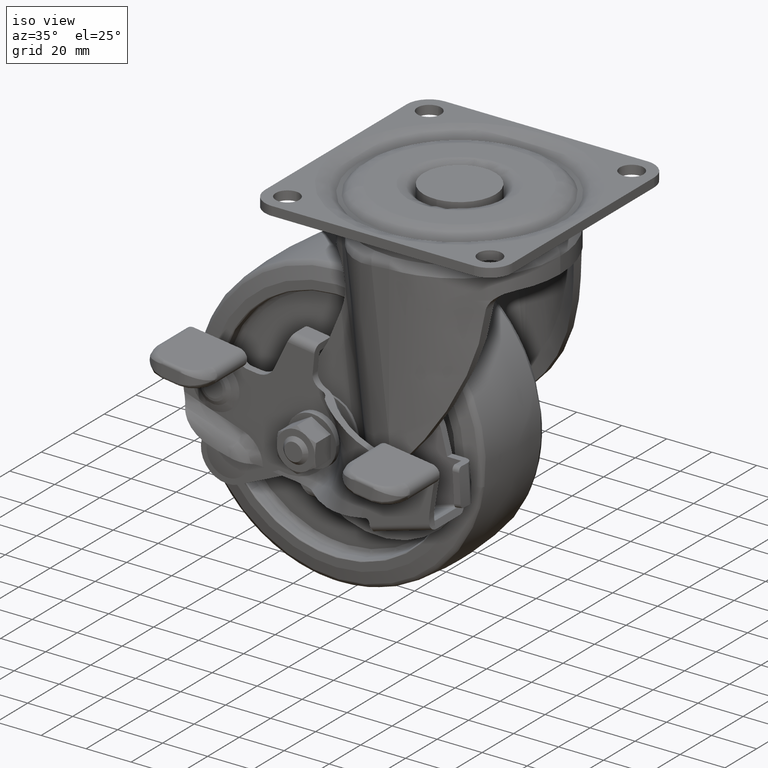
[diagram: clean part render]
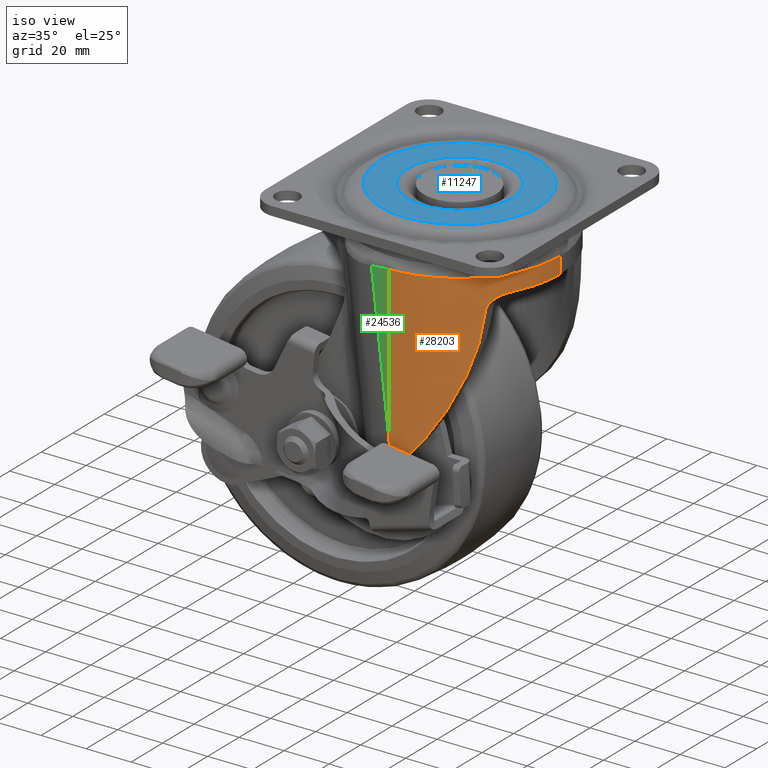
[diagram: same view with three faces highlighted in distinct colors, each labeled with its STEP entity id]
A machine part, iso view with three faces highlighted in distinct colors.
Their STEP definitions:

[orange] entity #28203 — the highlighted face is a freeform B-spline surface patch.
#23307=CARTESIAN_POINT('',(0.0,-44.866289000000002,-17.248842761986001));
#23308=VERTEX_POINT('',#23307);
#24521=CARTESIAN_POINT('',(-1.387779E-014,-44.866289000000002,-85.466906948423002));
#24522=VERTEX_POINT('',#24521);
#24523=CARTESIAN_POINT('',(-1.387779E-014,-44.866289000000002,-85.466906948423002));
#24524=CARTESIAN_POINT('',(0.0,-44.866289000000002,-17.248842761986001));
#24525=QUASI_UNIFORM_CURVE('',1,(#24523,#24524),.UNSPECIFIED.,.F.,.U.);
#24526=EDGE_CURVE('',#24522,#23308,#24525,.T.);
#24795=CARTESIAN_POINT('',(32.840996432676263,-30.514174671686899,-30.927961300702901));
#24796=VERTEX_POINT('',#24795);
#24797=CARTESIAN_POINT('',(0.983958270327116,-44.855470106970003,-97.711542046221595));
#24798=VERTEX_POINT('',#24797);
#24799=CARTESIAN_POINT('',(32.840996432676263,-30.514174671686899,-30.927961300702901));
#24800=CARTESIAN_POINT('',(32.731630099860837,-30.632330894282081,-32.546094941064631));
#24801=CARTESIAN_POINT('',(32.583944755285472,-30.790717479955401,-34.148724662803332));
#24802=CARTESIAN_POINT('',(32.215005379383093,-31.177960667727639,-37.325495495106431));
#24803=CARTESIAN_POINT('',(31.993748986579259,-31.406789397317429,-38.899641378470413));
#24804=CARTESIAN_POINT('',(31.479743140969362,-31.923853526529800,-42.021961037635847));
#24805=CARTESIAN_POINT('',(31.186991467957242,-32.212068984576547,-43.570138118607503));
#24806=CARTESIAN_POINT('',(30.531151511851469,-32.836562791659382,-46.642899830400637));
#24807=CARTESIAN_POINT('',(30.168061559413310,-33.172829663806667,-48.167486282591760));
#24808=CARTESIAN_POINT('',(29.371842230880731,-33.882273405533120,-51.195232966326117));
#24809=CARTESIAN_POINT('',(28.938712087202831,-34.255446139718060,-52.698393819863433));
#24810=CARTESIAN_POINT('',(28.236094140373918,-34.834837926547017,-54.938503494586953));
#24811=CARTESIAN_POINT('',(27.993061357243821,-35.031244232121779,-55.682766129840083));
#24812=CARTESIAN_POINT('',(27.489200453036879,-35.429309848749867,-57.166626006647171));
#24813=CARTESIAN_POINT('',(27.228122795627090,-35.631150784907263,-57.906866906281500));
#24814=CARTESIAN_POINT('',(26.421143775048328,-36.240241938700727,-60.112275977825377));
#24815=CARTESIAN_POINT('',(25.850857053407641,-36.651589258078467,-61.564310592639139));
#24816=CARTESIAN_POINT('',(24.645915459018759,-37.475007213163657,-64.434776762133907));
#24817=CARTESIAN_POINT('',(24.011259198952249,-37.887089062461428,-65.853204463774858));
#24818=CARTESIAN_POINT('',(22.677053516709631,-38.702881872110282,-68.658725358907759));
#24819=CARTESIAN_POINT('',(21.977504427053599,-39.106604614757117,-70.045815432892368));
#24820=CARTESIAN_POINT('',(20.512251665161958,-39.896974567302557,-72.790438651954332));
#24821=CARTESIAN_POINT('',(19.746550068240872,-40.283634522892449,-74.147969312690009));
#24822=CARTESIAN_POINT('',(18.146958658199338,-41.031197986952129,-76.834843949005005));
#24823=CARTESIAN_POINT('',(17.313072941648080,-41.392116170936283,-78.164185949876256));
#24824=CARTESIAN_POINT('',(16.008930425524440,-41.907378031786152,-80.137830900945744));
#24825=CARTESIAN_POINT('',(15.565323467464230,-42.074775066961450,-80.792315392128756));
#24826=CARTESIAN_POINT('',(14.886231415557461,-42.318426992784453,-81.769022469503781));
#24827=CARTESIAN_POINT('',(14.657485590724010,-42.398437439893463,-82.093896067101610));
#24828=CARTESIAN_POINT('',(14.195833179177390,-42.555660824809500,-82.741330960112165));
#24829=CARTESIAN_POINT('',(13.963123596707600,-42.632808526186679,-83.063619772614160));
#24830=CARTESIAN_POINT('',(12.790142660555251,-43.010890080827330,-84.667958762606901));
#24831=CARTESIAN_POINT('',(11.821594995001030,-43.288879795848210,-85.928709586177362));
#24832=CARTESIAN_POINT('',(9.823401096722959,-43.786914083052018,-88.405486636485804));
#24833=CARTESIAN_POINT('',(8.793756992630948,-44.006976581236110,-89.621511953282095));
#24834=CARTESIAN_POINT('',(6.671987161986849,-44.379221637924047,-92.009163520049910));
#24835=CARTESIAN_POINT('',(5.579865153196719,-44.531427703655588,-93.180789391207938));
#24836=CARTESIAN_POINT('',(3.331058320823689,-44.756444596235283,-95.479599050963813));
#24837=CARTESIAN_POINT('',(2.174379509276349,-44.829288920943434,-96.606782927658045));
#24838=CARTESIAN_POINT('',(0.983958270327203,-44.855470106969982,-97.711542046221666));
#24839=B_SPLINE_CURVE_WITH_KNOTS('',3,(#24799,#24800,#24801,#24802,#24803,#24804,#24805,#24806,#24807,#24808,#24809,#24810,#24811,#24812,#24813,#24814,#24815,#24816,#24817,#24818,#24819,#24820,#24821,#24822,#24823,#24824,#24825,#24826,#24827,#24828,#24829,#24830,#24831,#24832,#24833,#24834,#24835,#24836,#24837,#24838),.UNSPECIFIED.,.F.,.U.,(4,2,2,2,2,2,2,2,2,2,2,2,2,2,2,2,2,2,2,4),(0.0,0.062500000000000,0.124999999999999,0.187499999999999,0.249999999999998,0.312499999999998,0.343749999999998,0.374999999999997,0.437499999999997,0.499999999999997,0.562499999999997,0.624999999999997,0.687499999999997,0.718749999999997,0.734374999999997,0.749999999999997,0.812499999999998,0.874999999999998,0.937499999999999,1.0),.UNSPECIFIED.);
#24840=EDGE_CURVE('',#24796,#24798,#24839,.T.);
#24982=CARTESIAN_POINT('',(-1.387779E-014,-44.866289000000002,-85.466906948423002));
#24983=CARTESIAN_POINT('',(0.327975649001755,-44.866289000000037,-89.548454813020257));
#24984=CARTESIAN_POINT('',(0.655951281513829,-44.862684034033087,-93.630002685321458));
#24985=CARTESIAN_POINT('',(0.983958270327116,-44.855470106970003,-97.711542046221595));
#24986=QUASI_UNIFORM_CURVE('',3,(#24982,#24983,#24984,#24985),.UNSPECIFIED.,.F.,.U.);
#24987=EDGE_CURVE('',#24522,#24798,#24986,.T.);
#26011=CARTESIAN_POINT('',(44.750000000000000,-0.116289000000047,-17.135443677866451));
#26012=VERTEX_POINT('',#26011);
#26235=CARTESIAN_POINT('',(44.750000000000000,-0.116289000000047,-17.135443677866451));
#26236=CARTESIAN_POINT('',(44.750000000000000,-1.592059059004997,-17.139291673083729));
#26237=CARTESIAN_POINT('',(44.677175983599923,-3.063789167771555,-17.143118111069111));
#26238=CARTESIAN_POINT('',(44.495278035833017,-4.898410857314078,-17.147874577108560));
#26239=CARTESIAN_POINT('',(44.454308220495712,-5.265321345076796,-17.148825156901271));
#26240=CARTESIAN_POINT('',(44.363569910977041,-5.996060951983595,-17.150716998275009));
#26241=CARTESIAN_POINT('',(44.313780485432602,-6.360161973733542,-17.151658965685190));
#26242=CARTESIAN_POINT('',(44.151292432909969,-7.448699176509034,-17.154473158397629));
#26243=CARTESIAN_POINT('',(44.025482220071211,-8.169371845904813,-17.156333680533130));
#26244=CARTESIAN_POINT('',(43.596418382447467,-10.316569209574920,-17.161869391059099));
#26245=CARTESIAN_POINT('',(43.241652660935472,-11.728308020249600,-17.165498815662279));
#26246=CARTESIAN_POINT('',(42.396017706130401,-14.512718878171301,-17.172638366252119));
#26247=CARTESIAN_POINT('',(41.905151432675872,-15.885391775009770,-17.176148491774260));
#26248=CARTESIAN_POINT('',(41.064833776819960,-17.914544015962260,-17.181324084087318));
#26249=CARTESIAN_POINT('',(40.767360712763271,-18.585943070184889,-17.183034325932731));
#26250=CARTESIAN_POINT('',(40.373361304938001,-19.418831695218689,-17.185153239837099));
#26251=CARTESIAN_POINT('',(40.293406915396247,-19.585182665091320,-17.185576310074421));
#26252=CARTESIAN_POINT('',(40.131692247241439,-19.916383413033412,-17.186418365958019));
#26253=CARTESIAN_POINT('',(39.886297226102172,-20.411182373984921,-17.187675958387739));
#26254=CARTESIAN_POINT('',(39.632484095583060,-20.900010985219009,-17.188917198634840));
#26255=CARTESIAN_POINT('',(38.767924605820603,-22.516307841190919,-17.193018802615871));
#26256=CARTESIAN_POINT('',(38.017162786643190,-23.767419924240070,-17.196185580405601));
#26257=CARTESIAN_POINT('',(36.400053335120560,-26.187667512500099,-17.202297992434531));
#26258=CARTESIAN_POINT('',(35.533701123842292,-27.356799770219460,-17.205243613389211));
#26259=CARTESIAN_POINT('',(33.684690276566371,-29.612576623238070,-17.210915274789851));
#26260=CARTESIAN_POINT('',(32.702043374820157,-30.699229540799472,-17.213641332001430));
#26261=CARTESIAN_POINT('',(31.137732845414089,-32.265137214209751,-17.217562204147349));
#26262=CARTESIAN_POINT('',(30.605210682919409,-32.772391216103919,-17.218831018531869));
#26263=CARTESIAN_POINT('',(29.519125101772421,-33.757352986152718,-17.221292505711919));
#26264=CARTESIAN_POINT('',(28.965444984177431,-34.235176637921569,-17.222485468440880));
#26265=CARTESIAN_POINT('',(27.272886953928349,-35.625219205236263,-17.225952973957121));
#26266=CARTESIAN_POINT('',(26.102565626307712,-36.494112059498100,-17.228116401337260));
#26267=CARTESIAN_POINT('',(23.678292459660881,-38.116662801038053,-17.232150570234751));
#26268=CARTESIAN_POINT('',(22.424345174738260,-38.870326963452897,-17.234021323251650));
#26269=CARTESIAN_POINT('',(20.965392596221228,-39.651698813805027,-17.235958516646509));
#26270=CARTESIAN_POINT('',(20.802614801195300,-39.737592020342163,-17.236171429464331));
#26271=CARTESIAN_POINT('',(20.475708160993332,-39.907516813458017,-17.236592573439790));
#26272=CARTESIAN_POINT('',(20.311475018928022,-39.991600615930587,-17.236800933959351));
#26273=CARTESIAN_POINT('',(19.817578467509239,-40.240621509495213,-17.237417914345670));
#26274=CARTESIAN_POINT('',(19.486894364893001,-40.402247713953329,-17.237818234210721));
#26275=CARTESIAN_POINT('',(18.490627604736002,-40.874101462721377,-17.238986595111939));
#26276=CARTESIAN_POINT('',(17.820833129751041,-41.171312285532103,-17.239722058842329));
#26277=CARTESIAN_POINT('',(15.794859123007351,-42.011671167255592,-17.241800536734821));
#26278=CARTESIAN_POINT('',(14.422128057430641,-42.503666318106042,-17.243015952454201));
#26279=CARTESIAN_POINT('',(11.632907358840670,-43.352419724118327,-17.245111285760359));
#26280=CARTESIAN_POINT('',(10.216418821395120,-43.709181365164540,-17.245991209211549));
#26281=CARTESIAN_POINT('',(8.417919186369330,-44.068941908728902,-17.246878160682918));
#26282=CARTESIAN_POINT('',(8.056821615389339,-44.136574565318220,-17.247044877778318));
#26283=CARTESIAN_POINT('',(7.331804512106659,-44.263118539510749,-17.247356778780620));
#26284=CARTESIAN_POINT('',(6.967531753550324,-44.322080148039120,-17.247502086608570));
#26285=CARTESIAN_POINT('',(5.873417339095804,-44.485302374245130,-17.247904301299450));
#26286=CARTESIAN_POINT('',(5.142589002022014,-44.575907859220329,-17.248127519139949));
#26287=CARTESIAN_POINT('',(2.945876515295306,-44.793464767499572,-17.248663442524389));
#26288=CARTESIAN_POINT('',(1.475775202262842,-44.866289000000052,-17.248842761986008));
#26289=CARTESIAN_POINT('',(-7.139596E-015,-44.866289000000037,-17.248842761986001));
#26290=B_SPLINE_CURVE_WITH_KNOTS('',3,(#26235,#26236,#26237,#26238,#26239,#26240,#26241,#26242,#26243,#26244,#26245,#26246,#26247,#26248,#26249,#26250,#26251,#26252,#26253,#26254,#26255,#26256,#26257,#26258,#26259,#26260,#26261,#26262,#26263,#26264,#26265,#26266,#26267,#26268,#26269,#26270,#26271,#26272,#26273,#26274,#26275,#26276,#26277,#26278,#26279,#26280,#26281,#26282,#26283,#26284,#26285,#26286,#26287,#26288,#26289),.UNSPECIFIED.,.F.,.U.,(4,2,2,2,2,2,2,2,2,1,2,2,2,2,2,2,2,2,2,2,2,2,2,2,2,2,2,4),(0.0,0.062500000000000,0.078125000000000,0.093750000000000,0.124999999999999,0.187499999999999,0.249999999999999,0.281249999999998,0.289062499999998,0.296874999999998,0.312499999999998,0.374999999999999,0.437499999999999,0.499999999999999,0.531249999999999,0.562500000000000,0.625000000000000,0.687500000000001,0.695312500000001,0.703125000000001,0.718750000000001,0.750000000000001,0.812500000000001,0.875000000000000,0.890625000000000,0.906250000000000,0.937500000000000,1.0),.UNSPECIFIED.);
#26291=EDGE_CURVE('',#26012,#23308,#26290,.T.);
#28118=CARTESIAN_POINT('',(-1.786212567958295,-44.830626126497471,-15.121041218657570));
#28119=CARTESIAN_POINT('',(-1.786212567958295,-44.830626126497471,-99.776304566910696));
#28120=CARTESIAN_POINT('',(47.010923657865710,-46.779935086627127,-15.121041218657568));
#28121=CARTESIAN_POINT('',(47.010923657865710,-46.779935086627127,-99.776304566910710));
#28122=CARTESIAN_POINT('',(44.699864257169239,2.001406773864164,-15.121041218657570));
#28123=CARTESIAN_POINT('',(44.699864257169239,2.001406773864164,-99.776304566910696));
#28131=(BOUNDED_SURFACE()B_SPLINE_SURFACE(1,2,((#28118,#28120,#28122),(#28119,#28121,#28123)),.UNSPECIFIED.,.F.,.F.,.U.)B_SPLINE_SURFACE_WITH_KNOTS((2,2),(3,3),(0.0,84.655263348253129),(0.0,78.761885029638194),.UNSPECIFIED.)GEOMETRIC_REPRESENTATION_ITEM()RATIONAL_B_SPLINE_SURFACE(((1.0,0.675590207615660,1.0),(1.0,0.675590207615660,1.0)))REPRESENTATION_ITEM('')SURFACE());
#28132=ORIENTED_EDGE('',*,*,#24526,.F.);
#28133=ORIENTED_EDGE('',*,*,#24987,.T.);
#28134=ORIENTED_EDGE('',*,*,#24840,.F.);
#28135=CARTESIAN_POINT('',(39.825062545362051,-20.525279500708351,-24.399999999999999));
#28136=VERTEX_POINT('',#28135);
#28137=CARTESIAN_POINT('',(39.825062545362051,-20.525279500708351,-24.399999999999999));
#28138=CARTESIAN_POINT('',(39.537730133407933,-21.085965306161849,-24.400000000000009));
#28139=CARTESIAN_POINT('',(39.240234213416308,-21.637305956422392,-24.417610941158660));
#28140=CARTESIAN_POINT('',(38.626307264561632,-22.720681030445348,-24.496467069418241));
#28141=CARTESIAN_POINT('',(38.309869136805560,-23.252721396718169,-24.557653358003289));
#28142=CARTESIAN_POINT('',(37.659721724315347,-24.296568919269060,-24.734805496965190));
#28143=CARTESIAN_POINT('',(37.325997423372833,-24.808389118482790,-24.850644060356789));
#28144=CARTESIAN_POINT('',(36.814146172117283,-25.559814494626110,-25.077877728140091));
#28145=CARTESIAN_POINT('',(36.641657350177013,-25.807566642417640,-25.162586418560942));
#28146=CARTESIAN_POINT('',(36.380412093603880,-26.174890093812650,-25.305393165193902));
#28147=CARTESIAN_POINT('',(36.292912399611943,-26.296613105247971,-25.355625796572081));
#28148=CARTESIAN_POINT('',(36.117137452534891,-26.538575860460011,-25.461832296981690));
#28149=CARTESIAN_POINT('',(36.028975409459633,-26.658653972481542,-25.517750927855250));
#28150=CARTESIAN_POINT('',(35.765643491895730,-27.013650862495989,-25.693368444625062));
#28151=CARTESIAN_POINT('',(35.590960383272090,-27.244249510025160,-25.821288788396060));
#28152=CARTESIAN_POINT('',(35.244764855751377,-27.692533354515032,-26.101838717438159));
#28153=CARTESIAN_POINT('',(35.073245246336022,-27.910225485487221,-26.254448241287669));
#28154=CARTESIAN_POINT('',(34.819730795440023,-28.226199738035429,-26.505025872443220));
#28155=CARTESIAN_POINT('',(34.735703413265057,-28.329945102363709,-26.592360808039441));
#28156=CARTESIAN_POINT('',(34.570794216555903,-28.531771918882519,-26.773161413617409));
#28157=CARTESIAN_POINT('',(34.489749968148047,-28.630059339937759,-26.866771097055079));
#28158=CARTESIAN_POINT('',(34.251338735734102,-28.916811604048711,-27.157771667357050));
#28159=CARTESIAN_POINT('',(34.098658162345650,-29.097203601542589,-27.365277909762089));
#28160=CARTESIAN_POINT('',(33.881492124376287,-29.350162183850120,-27.699777976039289));
#28161=CARTESIAN_POINT('',(33.811086906331603,-29.431535342882452,-27.815163724187119));
#28162=CARTESIAN_POINT('',(33.708857676593162,-29.548891766694521,-27.994595981229700));
#28163=CARTESIAN_POINT('',(33.675345171977710,-29.587225841147379,-28.055466957607681));
#28164=CARTESIAN_POINT('',(33.609526633417481,-29.662265210380021,-28.179435085037639));
#28165=CARTESIAN_POINT('',(33.577153796995432,-29.699045949329729,-28.242672173926930));
#28166=CARTESIAN_POINT('',(33.419627588912860,-29.877459089589639,-28.562443536055600));
#28167=CARTESIAN_POINT('',(33.307118414612020,-30.003064417118200,-28.830072508387019));
#28168=CARTESIAN_POINT('',(33.161485629520882,-30.164310837096771,-29.250866817156162));
#28169=CARTESIAN_POINT('',(33.116808420412362,-30.213516627470341,-29.394367533509691));
#28170=CARTESIAN_POINT('',(33.056097377437268,-30.280138702531371,-29.614805527594498));
#28171=CARTESIAN_POINT('',(33.036912387408357,-30.301146753680520,-29.689150412374062));
#28172=CARTESIAN_POINT('',(33.000747855608800,-30.340680783355250,-29.839641741898738));
#28173=CARTESIAN_POINT('',(32.983787856013393,-30.359185290000919,-29.915737858891500));
#28174=CARTESIAN_POINT('',(32.905414330264847,-30.444572913953401,-30.297437422316829));
#28175=CARTESIAN_POINT('',(32.862536404383917,-30.490903509289211,-30.609265849046430));
#28176=CARTESIAN_POINT('',(32.840996432676263,-30.514174671686899,-30.927961300702961));
#28177=B_SPLINE_CURVE_WITH_KNOTS('',3,(#28137,#28138,#28139,#28140,#28141,#28142,#28143,#28144,#28145,#28146,#28147,#28148,#28149,#28150,#28151,#28152,#28153,#28154,#28155,#28156,#28157,#28158,#28159,#28160,#28161,#28162,#28163,#28164,#28165,#28166,#28167,#28168,#28169,#28170,#28171,#28172,#28173,#28174,#28175,#28176),.UNSPECIFIED.,.F.,.U.,(4,2,2,2,2,2,2,2,2,2,2,2,2,2,2,2,2,2,2,4),(0.0,0.125000000000000,0.250000000000001,0.375000000000001,0.437500000000001,0.468750000000001,0.500000000000001,0.562500000000001,0.625000000000001,0.656250000000001,0.687500000000001,0.750000000000000,0.781250000000000,0.796875000000000,0.812500000000000,0.875000000000000,0.906250000000000,0.921875000000000,0.937500000000000,1.0),.UNSPECIFIED.);
#28178=EDGE_CURVE('',#28136,#24796,#28177,.T.);
#28179=ORIENTED_EDGE('',*,*,#28178,.F.);
#28180=CARTESIAN_POINT('',(44.750000000000000,-0.116289000000047,-24.399999999999999));
#28181=VERTEX_POINT('',#28180);
#28182=CARTESIAN_POINT('',(44.750000000000000,-0.116289000000047,-24.399999999999999));
#28183=CARTESIAN_POINT('',(44.750000000000007,-10.915007882612089,-24.399999999999999));
#28184=CARTESIAN_POINT('',(39.825062545362051,-20.525279500708329,-24.399999999999999));
#28192=(BOUNDED_CURVE()B_SPLINE_CURVE(2,(#28182,#28183,#28184),.UNSPECIFIED.,.F.,.U.)CURVE()GEOMETRIC_REPRESENTATION_ITEM()QUASI_UNIFORM_CURVE()RATIONAL_B_SPLINE_CURVE((1.0,0.972097096935264,1.0))REPRESENTATION_ITEM(''));
#28193=EDGE_CURVE('',#28181,#28136,#28192,.T.);
#28194=ORIENTED_EDGE('',*,*,#28193,.F.);
#28195=CARTESIAN_POINT('',(44.750000000000000,-0.116289000000047,-17.135443677866451));
#28196=CARTESIAN_POINT('',(44.750000000000000,-0.116289000000047,-24.399999999999999));
#28197=QUASI_UNIFORM_CURVE('',1,(#28195,#28196),.UNSPECIFIED.,.F.,.U.);
#28198=EDGE_CURVE('',#26012,#28181,#28197,.T.);
#28199=ORIENTED_EDGE('',*,*,#28198,.F.);
#28200=ORIENTED_EDGE('',*,*,#26291,.T.);
#28201=EDGE_LOOP('',(#28132,#28133,#28134,#28179,#28194,#28199,#28200));
#28202=FACE_OUTER_BOUND('',#28201,.T.);
#28203=ADVANCED_FACE('',(#28202),#28131,.T.);

[blue] entity #11247 — the highlighted face is a freeform B-spline surface patch.
#10902=CARTESIAN_POINT('',(-22.998184016583391,-0.289018917486756,-1.508212E-015));
#10903=VERTEX_POINT('',#10902);
#10917=CARTESIAN_POINT('',(23.0,0.0,0.0));
#10918=VERTEX_POINT('',#10917);
#10919=CARTESIAN_POINT('',(23.0,0.0,0.0));
#10920=CARTESIAN_POINT('',(23.000117290351820,-1.311915802925779,-2.664234E-019));
#10921=CARTESIAN_POINT('',(22.778879877665862,-3.888805590312656,-8.051052E-018));
#10922=CARTESIAN_POINT('',(21.705749411843151,-8.030312738230990,-4.408922E-017));
#10923=CARTESIAN_POINT('',(19.956522838299328,-11.687312727839830,-1.021949E-016));
#10924=CARTESIAN_POINT('',(17.505695135538460,-15.073928657519531,-1.832484E-016));
#10925=CARTESIAN_POINT('',(14.702776154658570,-17.860374273383538,-2.757224E-016));
#10926=CARTESIAN_POINT('',(11.392050451813530,-20.106077662008961,-3.847346E-016));
#10927=CARTESIAN_POINT('',(8.186244534034946,-21.568283121718270,-4.901453E-016));
#10928=CARTESIAN_POINT('',(5.265528420346707,-22.451054367420671,-5.860893E-016));
#10929=CARTESIAN_POINT('',(2.395749949713751,-22.938452661196312,-6.802818E-016));
#10930=CARTESIAN_POINT('',(-0.935044414612375,-23.071455134277571,-7.895167E-016));
#10931=CARTESIAN_POINT('',(-5.001360298495119,-22.610779773385410,-9.227450E-016));
#10932=CARTESIAN_POINT('',(-8.902454871288262,-21.341488950560191,-1.050390E-015));
#10933=CARTESIAN_POINT('',(-12.006299498253140,-19.678364233645389,-1.151813E-015));
#10934=CARTESIAN_POINT('',(-14.432599483971380,-17.990227377011418,-1.231017E-015));
#10935=CARTESIAN_POINT('',(-16.486963852110581,-16.128479924823029,-1.297991E-015));
#10936=CARTESIAN_POINT('',(-18.435574169814021,-13.843899118121280,-1.361410E-015));
#10937=CARTESIAN_POINT('',(-20.100311840480739,-11.341634929037451,-1.415476E-015));
#10938=CARTESIAN_POINT('',(-21.592225040003001,-8.200606403413266,-1.463745E-015));
#10939=CARTESIAN_POINT('',(-22.687526272127268,-4.455362907543194,-1.498885E-015));
#10940=CARTESIAN_POINT('',(-22.980096794404592,-1.741373683744084,-1.507919E-015));
#10941=CARTESIAN_POINT('',(-22.998184016583391,-0.289018917486756,-1.508212E-015));
#10942=B_SPLINE_CURVE_WITH_KNOTS('',3,(#10919,#10920,#10921,#10922,#10923,#10924,#10925,#10926,#10927,#10928,#10929,#10930,#10931,#10932,#10933,#10934,#10935,#10936,#10937,#10938,#10939,#10940,#10941),.UNSPECIFIED.,.F.,.U.,(4,1,1,1,1,1,1,1,1,1,1,1,1,1,1,1,1,1,1,1,4),(0.000000364367637,3.935732858788725,7.730837527117828,12.791119442457729,16.024058660988469,20.240941758538231,24.598358962331901,27.971883092498551,30.783122845406091,33.734926621786506,36.686556684715541,40.762925261204487,45.963707571906298,48.915523319454643,51.305101675730448,54.819164000930577,57.208718394923231,60.301130362144299,63.815153889084307,67.610345644552154,71.967716503159011),.UNSPECIFIED.);
#10943=EDGE_CURVE('',#10918,#10903,#10942,.T.);
#10945=CARTESIAN_POINT('',(22.998184016583391,0.289018917486752,-1.508212E-015));
#10946=VERTEX_POINT('',#10945);
#10947=CARTESIAN_POINT('',(22.998184016583387,0.289018917486752,-1.508212E-015));
#10948=CARTESIAN_POINT('',(22.999999999948884,0.144515163898296,-7.541062E-016));
#10949=CARTESIAN_POINT('',(23.0,0.0,0.0));
#10957=(BOUNDED_CURVE()B_SPLINE_CURVE(2,(#10947,#10948,#10949),.UNSPECIFIED.,.F.,.U.)B_SPLINE_CURVE_WITH_KNOTS((3,3),(0.497784295920421,0.500000000000000),.UNSPECIFIED.)CURVE()GEOMETRIC_REPRESENTATION_ITEM()RATIONAL_B_SPLINE_CURVE((0.994854295641004,0.997404141200776,1.0))REPRESENTATION_ITEM(''));
#10958=EDGE_CURVE('',#10946,#10918,#10957,.T.);
#11008=CARTESIAN_POINT('',(-23.0,0.0,0.0));
#11009=VERTEX_POINT('',#11008);
#11010=CARTESIAN_POINT('',(-23.0,0.0,0.0));
#11011=CARTESIAN_POINT('',(-23.000381215849870,1.780455795586689,-3.542944E-019));
#11012=CARTESIAN_POINT('',(-22.655445520736968,4.732028150598798,-1.227184E-017));
#11013=CARTESIAN_POINT('',(-21.356553905355060,8.806163292611389,-5.569821E-017));
#11014=CARTESIAN_POINT('',(-19.693494152188190,12.075527763228640,-1.108988E-016));
#11015=CARTESIAN_POINT('',(-17.693222782338200,14.804273414517700,-1.770444E-016));
#11016=CARTESIAN_POINT('',(-15.576171363247219,17.000768734347680,-2.469091E-016));
#11017=CARTESIAN_POINT('',(-13.169786121332120,18.953095363122252,-3.262100E-016));
#11018=CARTESIAN_POINT('',(-10.021510895177650,20.831767267279950,-4.298202E-016));
#11019=CARTESIAN_POINT('',(-6.634695788964999,22.121198036705248,-5.411302E-016));
#11020=CARTESIAN_POINT('',(-3.006241340941855,22.886778298882920,-6.602548E-016));
#11021=CARTESIAN_POINT('',(0.467049018415083,23.099958316276819,-7.741783E-016));
#11022=CARTESIAN_POINT('',(4.347219613739630,22.696084497123969,-9.013151E-016));
#11023=CARTESIAN_POINT('',(7.745600549557833,21.748996104927478,-1.012544E-015));
#11024=CARTESIAN_POINT('',(10.786717543935060,20.385296749944668,-1.111972E-015));
#11025=CARTESIAN_POINT('',(13.669580129094660,18.618569299213949,-1.206129E-015));
#11026=CARTESIAN_POINT('',(16.312837633890400,16.352307511259578,-1.292328E-015));
#11027=CARTESIAN_POINT('',(18.650937641707021,13.593975369991000,-1.368419E-015));
#11028=CARTESIAN_POINT('',(20.646501609900302,10.408043038523410,-1.433192E-015));
#11029=CARTESIAN_POINT('',(22.438540334614391,5.951411826633152,-1.491030E-015));
#11030=CARTESIAN_POINT('',(22.972985835868620,2.350473368582509,-1.507811E-015));
#11031=CARTESIAN_POINT('',(22.998184016583391,0.289018917486752,-1.508212E-015));
#11032=B_SPLINE_CURVE_WITH_KNOTS('',3,(#11010,#11011,#11012,#11013,#11014,#11015,#11016,#11017,#11018,#11019,#11020,#11021,#11022,#11023,#11024,#11025,#11026,#11027,#11028,#11029,#11030,#11031),.UNSPECIFIED.,.F.,.U.,(4,1,1,1,1,1,1,1,1,1,1,1,1,1,1,1,1,1,1,4),(0.000000364388825,5.341261785192572,8.855324850412117,12.791119442473390,16.305182061793221,18.975869248245299,21.927675547855021,25.582337158254870,29.939793892716420,32.751007989281632,36.686556684719648,40.341175959476303,44.417500859911200,47.228808192265433,50.321144699508110,54.538038535307408,57.630430698599021,61.144499116190872,65.783082339240480,71.967716503158883),.UNSPECIFIED.);
#11033=EDGE_CURVE('',#11009,#10946,#11032,.T.);
#11035=CARTESIAN_POINT('',(-22.998184016583398,-0.289018917486756,-1.508212E-015));
#11036=CARTESIAN_POINT('',(-22.999999999948884,-0.144515163898298,-7.541062E-016));
#11037=CARTESIAN_POINT('',(-23.0,0.0,0.0));
#11045=(BOUNDED_CURVE()B_SPLINE_CURVE(2,(#11035,#11036,#11037),.UNSPECIFIED.,.F.,.U.)B_SPLINE_CURVE_WITH_KNOTS((3,3),(0.997784295920421,1.0),.UNSPECIFIED.)CURVE()GEOMETRIC_REPRESENTATION_ITEM()RATIONAL_B_SPLINE_CURVE((0.994854295641004,0.997404141200776,1.0))REPRESENTATION_ITEM(''));
#11046=EDGE_CURVE('',#10903,#11009,#11045,.T.);
#11084=CARTESIAN_POINT('',(27.704124890713299,21.769695682183372,-1.688526E-015));
#11085=VERTEX_POINT('',#11084);
#11099=CARTESIAN_POINT('',(35.234048673858453,0.0,0.0));
#11100=VERTEX_POINT('',#11099);
#11101=CARTESIAN_POINT('',(35.234048673858453,0.0,0.0));
#11102=CARTESIAN_POINT('',(35.234048674434689,12.187111157663757,-8.442630E-016));
#11103=CARTESIAN_POINT('',(27.704124890713299,21.769695682183372,-1.688526E-015));
#11111=(BOUNDED_CURVE()B_SPLINE_CURVE(2,(#11101,#11102,#11103),.UNSPECIFIED.,.F.,.U.)B_SPLINE_CURVE_WITH_KNOTS((3,3),(0.500000000000000,0.606965446780570),.UNSPECIFIED.)CURVE()GEOMETRIC_REPRESENTATION_ITEM()RATIONAL_B_SPLINE_CURVE((1.0,0.874682183962480,0.856601777381108))REPRESENTATION_ITEM(''));
#11112=EDGE_CURVE('',#11100,#11085,#11111,.T.);
#11114=CARTESIAN_POINT('',(-27.704124890713292,-21.769695682183372,-1.688526E-015));
#11115=VERTEX_POINT('',#11114);
#11116=CARTESIAN_POINT('',(-27.704124890713292,-21.769695682183372,-1.688526E-015));
#11117=CARTESIAN_POINT('',(-26.862068207819870,-22.841324151928958,-1.677231E-015));
#11118=CARTESIAN_POINT('',(-24.827357385009488,-25.142431276170310,-1.647548E-015));
#11119=CARTESIAN_POINT('',(-21.091024476369508,-28.394632894699392,-1.584974E-015));
#11120=CARTESIAN_POINT('',(-17.239146662071249,-30.830472889035860,-1.512865E-015));
#11121=CARTESIAN_POINT('',(-13.336646039763149,-32.682050753903212,-1.434701E-015));
#11122=CARTESIAN_POINT('',(-9.473171914471982,-34.044697434957079,-1.353420E-015));
#11123=CARTESIAN_POINT('',(-4.179673186382879,-35.151668421180382,-1.235754E-015));
#11124=CARTESIAN_POINT('',(1.179037148572995,-35.362326150925753,-1.109097E-015));
#11125=CARTESIAN_POINT('',(6.150630612478639,-34.773451104095372,-9.850890E-016));
#11126=CARTESIAN_POINT('',(10.742780041564339,-33.679574255468573,-8.659878E-016));
#11127=CARTESIAN_POINT('',(15.145804972806451,-31.950921941106468,-7.461572E-016));
#11128=CARTESIAN_POINT('',(19.591324416677988,-29.410486704130921,-6.185803E-016));
#11129=CARTESIAN_POINT('',(23.211559248890872,-26.646222049686330,-5.089234E-016));
#11130=CARTESIAN_POINT('',(26.672210213818509,-23.187673917844151,-3.973361E-016));
#11131=CARTESIAN_POINT('',(29.395944545698640,-19.607154423315141,-3.023956E-016));
#11132=CARTESIAN_POINT('',(32.079765208781559,-14.917661171833309,-1.992202E-016));
#11133=CARTESIAN_POINT('',(33.974455338490429,-9.960269964085391,-1.127332E-016));
#11134=CARTESIAN_POINT('',(35.037432059752739,-4.599664900985210,-4.283359E-017));
#11135=CARTESIAN_POINT('',(35.234093207090027,-1.476438759170841,-1.223576E-017));
#11136=CARTESIAN_POINT('',(35.234048673858453,0.0,0.0));
#11137=B_SPLINE_CURVE_WITH_KNOTS('',3,(#11116,#11117,#11118,#11119,#11120,#11121,#11122,#11123,#11124,#11125,#11126,#11127,#11128,#11129,#11130,#11131,#11132,#11133,#11134,#11135,#11136),.UNSPECIFIED.,.F.,.U.,(4,1,1,1,1,1,1,1,1,1,1,1,1,1,1,1,1,1,4),(0.000000230569441,4.088654771806461,9.199500481434711,14.821426636125519,17.717573423093000,22.146968075753460,27.087433185349109,33.901642993729617,38.160662163771242,42.078988563576431,48.041637544683283,52.300697596849183,57.411506984714123,61.670534079916123,66.951724148952550,70.870036873605301,77.854864301395494,82.795297395597331,87.224615399671393),.UNSPECIFIED.);
#11138=EDGE_CURVE('',#11115,#11100,#11137,.T.);
#11187=CARTESIAN_POINT('',(-35.234048673858453,0.0,0.0));
#11188=VERTEX_POINT('',#11187);
#11189=CARTESIAN_POINT('',(-35.234048673858453,0.0,0.0));
#11190=CARTESIAN_POINT('',(-35.234048674434696,-12.187111157663770,-8.442630E-016));
#11191=CARTESIAN_POINT('',(-27.704124890713292,-21.769695682183372,-1.688526E-015));
#11199=(BOUNDED_CURVE()B_SPLINE_CURVE(2,(#11189,#11190,#11191),.UNSPECIFIED.,.F.,.U.)B_SPLINE_CURVE_WITH_KNOTS((3,3),(0.0,0.106965446780570),.UNSPECIFIED.)CURVE()GEOMETRIC_REPRESENTATION_ITEM()RATIONAL_B_SPLINE_CURVE((1.0,0.874682183962480,0.856601777381108))REPRESENTATION_ITEM(''));
#11200=EDGE_CURVE('',#11188,#11115,#11199,.T.);
#11202=CARTESIAN_POINT('',(27.704124890713299,21.769695682183372,-1.688526E-015));
#11203=CARTESIAN_POINT('',(26.546370967673180,23.243254167061739,-1.672997E-015));
#11204=CARTESIAN_POINT('',(23.994947514625501,26.004955831496570,-1.634750E-015));
#11205=CARTESIAN_POINT('',(20.096195498678490,29.064943737778311,-1.566692E-015));
#11206=CARTESIAN_POINT('',(15.938124332179850,31.528612909062549,-1.487477E-015));
#11207=CARTESIAN_POINT('',(12.385436963826550,33.069233124934108,-1.415118E-015));
#11208=CARTESIAN_POINT('',(8.144943296594056,34.360346802812472,-1.324209E-015));
#11209=CARTESIAN_POINT('',(3.720479228347116,35.174379894609586,-1.224939E-015));
#11210=CARTESIAN_POINT('',(-1.175618050547036,35.319377822297128,-1.108823E-015));
#11211=CARTESIAN_POINT('',(-6.380172343908343,34.779711316520043,-9.796407E-016));
#11212=CARTESIAN_POINT('',(-11.188162723165449,33.560281340337831,-8.543270E-016));
#11213=CARTESIAN_POINT('',(-16.579939620705488,31.260859660316761,-7.060738E-016));
#11214=CARTESIAN_POINT('',(-21.066738406799811,28.431082644598209,-5.751097E-016));
#11215=CARTESIAN_POINT('',(-25.550360357761310,24.480999611342270,-4.349366E-016));
#11216=CARTESIAN_POINT('',(-28.922803808346369,20.386390040642649,-3.201911E-016));
#11217=CARTESIAN_POINT('',(-31.854467530021960,15.376451358200130,-2.084212E-016));
#11218=CARTESIAN_POINT('',(-33.617747213601568,10.924772717446420,-1.292744E-016));
#11219=CARTESIAN_POINT('',(-34.911663961375147,5.621763733063950,-5.431841E-017));
#11220=CARTESIAN_POINT('',(-35.234330379661031,2.214675285893170,-1.834863E-017));
#11221=CARTESIAN_POINT('',(-35.234048673858453,0.0,0.0));
#11222=B_SPLINE_CURVE_WITH_KNOTS('',3,(#11202,#11203,#11204,#11205,#11206,#11207,#11208,#11209,#11210,#11211,#11212,#11213,#11214,#11215,#11216,#11217,#11218,#11219,#11220,#11221),.UNSPECIFIED.,.F.,.U.,(4,1,1,1,1,1,1,1,1,1,1,1,1,1,1,1,1,4),(0.000000230585187,5.621904493278095,11.243829841548649,14.821426636135300,20.102559617170041,22.828398178591190,28.109517705752189,33.560936652621777,37.479233328168782,43.782582402936377,48.382356576997573,55.026455803886243,59.626204807580898,66.270287214975966,70.870036873606935,77.002989862607819,80.580658050450580,87.224615399671379),.UNSPECIFIED.);
#11223=EDGE_CURVE('',#11085,#11188,#11222,.T.);
#11230=CARTESIAN_POINT('',(-38.753929999796050,38.753764045090620,0.0));
#11231=CARTESIAN_POINT('',(38.753931889897707,38.753764045090620,0.0));
#11232=CARTESIAN_POINT('',(-38.753929999796050,-38.753761526805562,0.0));
#11233=CARTESIAN_POINT('',(38.753931889897707,-38.753761526805562,0.0));
#11234=B_SPLINE_SURFACE_WITH_KNOTS('',1,1,((#11230,#11232),(#11231,#11233)),.UNSPECIFIED.,.F.,.F.,.U.,(2,2),(2,2),(0.0,77.507861889693771),(0.0,77.507525571896181),.UNSPECIFIED.);
#11235=ORIENTED_EDGE('',*,*,#11200,.T.);
#11236=ORIENTED_EDGE('',*,*,#11138,.T.);
#11237=ORIENTED_EDGE('',*,*,#11112,.T.);
#11238=ORIENTED_EDGE('',*,*,#11223,.T.);
#11239=EDGE_LOOP('',(#11235,#11236,#11237,#11238));
#11240=FACE_OUTER_BOUND('',#11239,.T.);
#11241=ORIENTED_EDGE('',*,*,#10943,.T.);
#11242=ORIENTED_EDGE('',*,*,#11046,.T.);
#11243=ORIENTED_EDGE('',*,*,#11033,.T.);
#11244=ORIENTED_EDGE('',*,*,#10958,.T.);
#11245=EDGE_LOOP('',(#11241,#11242,#11243,#11244));
#11246=FACE_BOUND('',#11245,.T.);
#11247=ADVANCED_FACE('',(#11240,#11246),#11234,.F.);

[green] entity #24536 — the highlighted face is a freeform B-spline surface patch.
#23292=CARTESIAN_POINT('',(-7.785596731193611,-44.866289000000002,-17.869883874534700));
#23293=VERTEX_POINT('',#23292);
#23307=CARTESIAN_POINT('',(0.0,-44.866289000000002,-17.248842761986001));
#23308=VERTEX_POINT('',#23307);
#23309=CARTESIAN_POINT('',(0.0,-44.866289000000002,-17.248842761986001));
#23310=CARTESIAN_POINT('',(-0.651857331728020,-44.866289000000002,-17.248842761986001));
#23311=CARTESIAN_POINT('',(-1.302895873233290,-44.866289000000002,-17.264608190187850));
#23312=CARTESIAN_POINT('',(-2.603459722269847,-44.866288999999973,-17.325275669021231));
#23313=CARTESIAN_POINT('',(-3.252987383292098,-44.866289000000002,-17.370132404269519));
#23314=CARTESIAN_POINT('',(-4.550843792230443,-44.866289000000002,-17.482930393816410));
#23315=CARTESIAN_POINT('',(-5.199113168453092,-44.866289000000002,-17.550817039928891));
#23316=CARTESIAN_POINT('',(-6.493414055223512,-44.866288999999988,-17.701396642656601));
#23317=CARTESIAN_POINT('',(-7.139690787401533,-44.866289000000002,-17.784072912015230));
#23318=CARTESIAN_POINT('',(-7.785596731193580,-44.866289000000002,-17.869883874534899));
#23319=B_SPLINE_CURVE_WITH_KNOTS('',3,(#23309,#23310,#23311,#23312,#23313,#23314,#23315,#23316,#23317,#23318),.UNSPECIFIED.,.F.,.U.,(4,2,2,2,4),(0.0,0.250000000000000,0.500000000000000,0.750000000000000,1.0),.UNSPECIFIED.);
#23320=EDGE_CURVE('',#23308,#23293,#23319,.T.);
#24516=CARTESIAN_POINT('',(-8.174487272826735,-44.866289000000002,-88.874399122315680));
#24517=CARTESIAN_POINT('',(-8.174487272826735,-44.866289000000002,-13.841348758342249));
#24518=CARTESIAN_POINT('',(0.388890750459101,-44.866289000000002,-88.874399122315680));
#24519=CARTESIAN_POINT('',(0.388890750459101,-44.866289000000002,-13.841348758342249));
#24520=B_SPLINE_SURFACE_WITH_KNOTS('',1,1,((#24516,#24518),(#24517,#24519)),.UNSPECIFIED.,.F.,.F.,.U.,(2,2),(2,2),(0.0,75.033050363973430),(0.0,8.563378023285836),.UNSPECIFIED.);
#24521=CARTESIAN_POINT('',(-1.387779E-014,-44.866289000000002,-85.466906948423002));
#24522=VERTEX_POINT('',#24521);
#24523=CARTESIAN_POINT('',(-1.387779E-014,-44.866289000000002,-85.466906948423002));
#24524=CARTESIAN_POINT('',(0.0,-44.866289000000002,-17.248842761986001));
#24525=QUASI_UNIFORM_CURVE('',1,(#24523,#24524),.UNSPECIFIED.,.F.,.U.);
#24526=EDGE_CURVE('',#24522,#23308,#24525,.T.);
#24527=ORIENTED_EDGE('',*,*,#24526,.T.);
#24528=ORIENTED_EDGE('',*,*,#23320,.T.);
#24529=CARTESIAN_POINT('',(-1.387779E-014,-44.866289000000002,-85.466906948423002));
#24530=CARTESIAN_POINT('',(-7.785596731193611,-44.866289000000002,-17.869883874534700));
#24531=QUASI_UNIFORM_CURVE('',1,(#24529,#24530),.UNSPECIFIED.,.F.,.U.);
#24532=EDGE_CURVE('',#24522,#23293,#24531,.T.);
#24533=ORIENTED_EDGE('',*,*,#24532,.F.);
#24534=EDGE_LOOP('',(#24527,#24528,#24533));
#24535=FACE_OUTER_BOUND('',#24534,.T.);
#24536=ADVANCED_FACE('',(#24535),#24520,.F.);